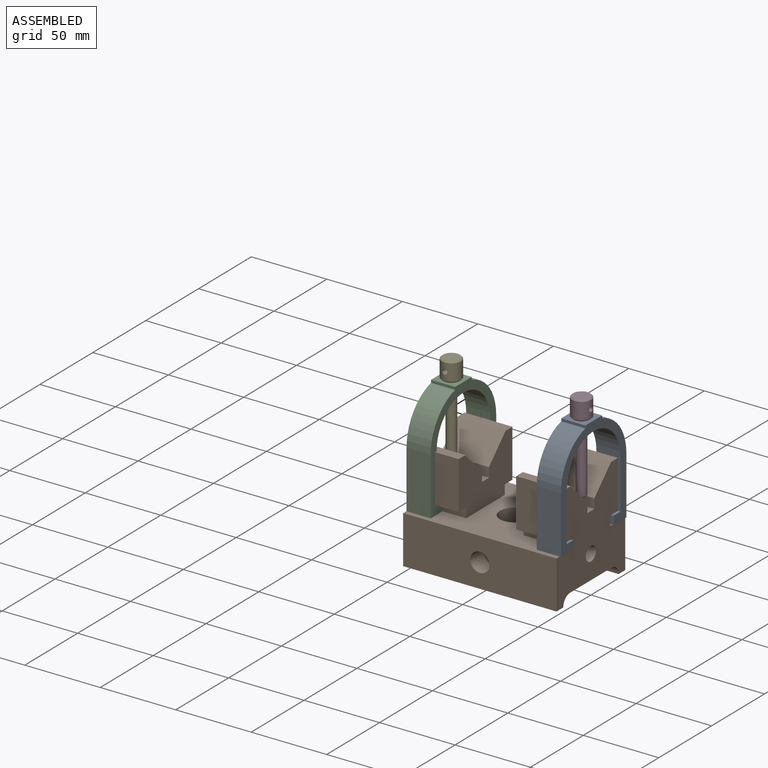
[diagram: assembled view]
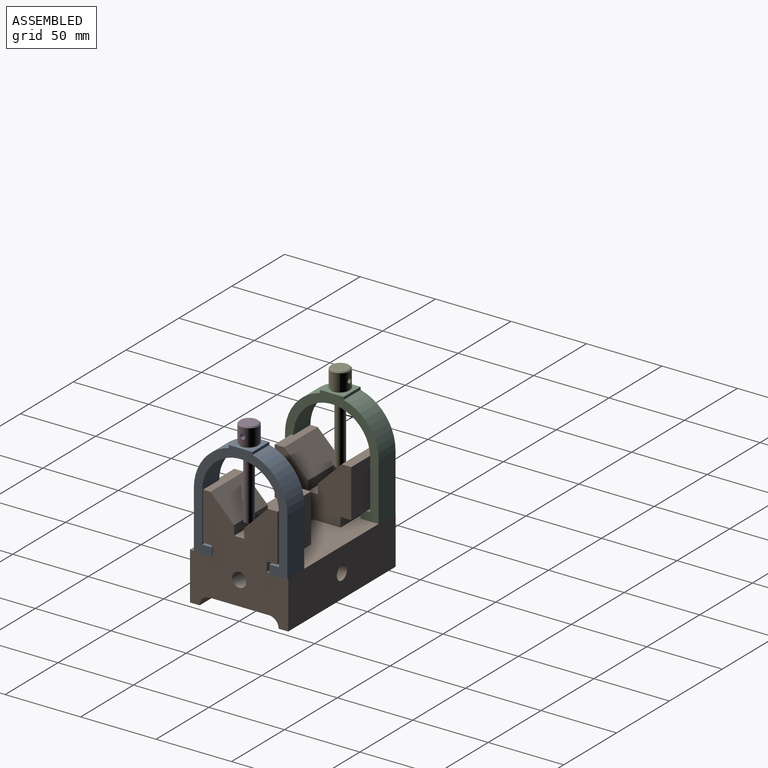
[diagram: assembled view, second angle]
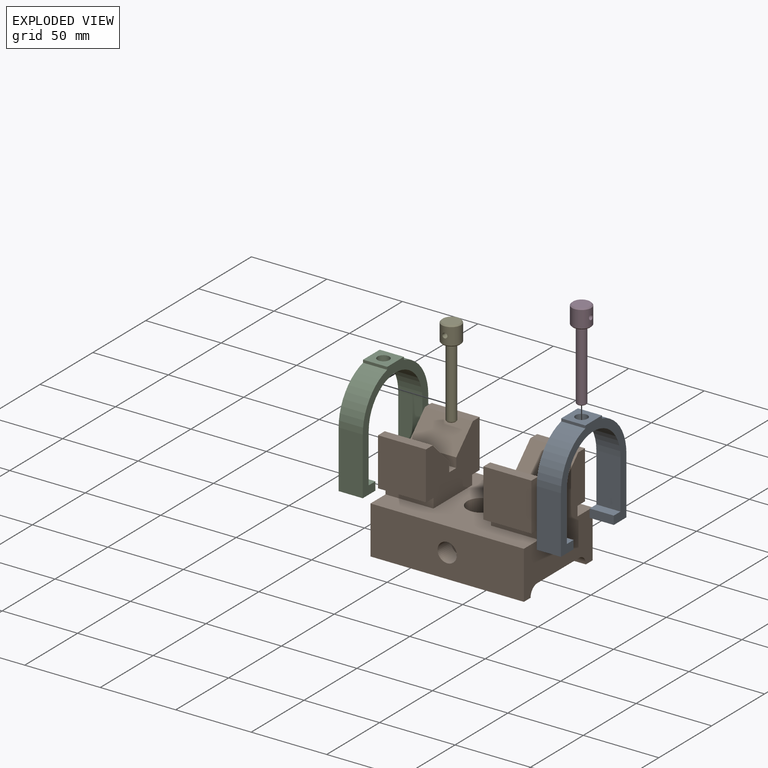
[diagram: exploded view]
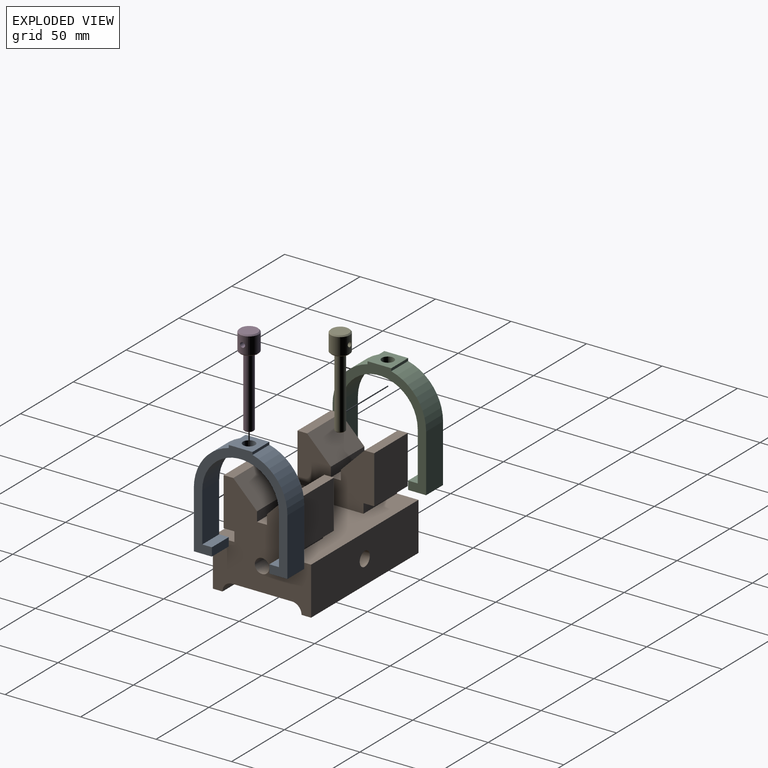
[diagram: exploded view, second angle]
ASSEMBLY  parts=5 mates=4
PART A: 19 faces, bbox 16x69.9x62 mm
  f0: cylinder r=25.4mm len=50.8mm, axis (-1,0,0), area 1227.2mm2, adj f13,f14,f16,f17,f18
  f1: plane 16x5.59mm, normal (0,0,-1), area 89.4mm2, adj f2,f15,f16,f17
  f2: plane 16x11.94mm, normal (0,1,0), area 191mm2, adj f1,f3,f16,f17
  f3: plane 38.1x16mm, normal (0,0,1), area 609.7mm2, adj f2,f4,f16,f17
  f4: cylinder r=30.99mm len=29.97mm, axis (-1,0,0), area 651.5mm2, adj f3,f5,f16,f17
  f5: plane 16x1.78mm, normal (0,0,1), area 28.5mm2, adj f4,f6,f16,f17
  f6: plane 16x15.75mm, normal (0,-1,0), area 202.4mm2, adj f5,f7,f16,f17,f18
  f7: plane 16x1.78mm, normal (0,0,-1), area 28.5mm2, adj f6,f8,f16,f17
  f8: cylinder r=30.99mm len=29.97mm, axis (-1,0,0), area 651.5mm2, adj f7,f9,f16,f17
  f9: plane 38.1x16mm, normal (0,0,-1), area 609.7mm2, adj f8,f10,f16,f17
  f10: plane 16x11.94mm, normal (0,1,0), area 191mm2, adj f9,f11,f16,f17
  f11: plane 16x5.59mm, normal (0,0,1), area 89.4mm2, adj f10,f12,f16,f17
  f12: plane 16x6.35mm, normal (0,-1,0), area 101.6mm2, adj f11,f13,f16,f17
  f13: plane 32.51x16mm, normal (0,0,1), area 520.3mm2, adj f0,f12,f16,f17
  f14: plane 32.51x16mm, normal (0,0,-1), area 520.3mm2, adj f0,f15,f16,f17
  f15: plane 16x6.35mm, normal (0,-1,0), area 101.6mm2, adj f1,f14,f16,f17
  f16: plane 69.85x61.98mm, normal (1,0,0), area 1009mm2, adj f0,f1,f2,f3,f4,f5,f6,f7
  f17: plane 69.85x61.98mm, normal (-1,0,0), area 1009mm2, adj f0,f1,f2,f3,f4,f5,f6,f7
  f18: cylinder r=3.98mm len=7.95mm, axis (0,-1,0), area 162.5mm2, adj f0,f6
PART B: 45 faces, bbox 101.6x65x69.9 mm
  f0: cylinder r=4.76mm len=24.26mm, axis (0,-1,0), area 706.6mm2, adj f25,f44
  f1: plane 31.75x6.35mm, normal (0,0,1), area 201.6mm2, adj f2,f4,f36,f42
  f2: plane 31.75x31.75mm, normal (0,-1,0), area 1008.1mm2, adj f1,f5,f36,f42
  f3: plane 31.75x6.35mm, normal (0,0,1), area 201.6mm2, adj f9,f10,f36,f42
  f4: plane 31.75x15.75mm, normal (0,0.71,0.71), area 707.1mm2, adj f1,f13,f36,f42
  f5: plane 31.75x7.11mm, normal (0,0,-1), area 225.8mm2, adj f2,f6,f36,f42
  f6: plane 31.75x6.35mm, normal (0,-1,0), area 201.6mm2, adj f5,f26,f36,f42
  f7: plane 31.75x6.35mm, normal (0,1,0), area 201.6mm2, adj f8,f26,f36,f42
  f8: plane 31.75x7.11mm, normal (0,0,-1), area 225.8mm2, adj f7,f9,f36,f42
  f9: plane 31.75x31.75mm, normal (0,1,0), area 1008.1mm2, adj f3,f8,f36,f42
  f10: plane 31.75x15.75mm, normal (0,-0.71,0.71), area 707.1mm2, adj f3,f11,f36,f42
  f11: plane 31.75x6.35mm, normal (0,-1,0), area 201.6mm2, adj f10,f12,f36,f42
  f12: plane 31.75x6.6mm, normal (0,0,1), area 209.7mm2, adj f11,f13,f36,f42
  f13: plane 31.75x6.35mm, normal (0,1,0), area 201.6mm2, adj f4,f12,f36,f42
  f14: plane 31.75x15.75mm, normal (0,0.71,0.71), area 707.1mm2, adj f15,f34,f35,f43
  f15: plane 31.75x6.35mm, normal (0,0,1), area 201.6mm2, adj f14,f16,f35,f43
  f16: plane 31.75x31.75mm, normal (0,-1,0), area 1008.1mm2, adj f15,f17,f35,f43
  f17: plane 31.75x7.11mm, normal (0,0,-1), area 225.8mm2, adj f16,f18,f35,f43
  f18: plane 31.75x6.35mm, normal (0,-1,0), area 201.6mm2, adj f17,f26,f35,f43
  f19: plane 101.6x31.75mm, normal (0,-1,0), area 3099.1mm2, adj f20,f26,f35,f36,f41
  f20: plane 101.6x6.35mm, normal (0,0,-1), area 645.2mm2, adj f19,f21,f35,f36
  f21: cylinder r=6.35mm len=101.6mm, axis (1,0,0), area 1013.4mm2, adj f20,f22,f35,f36
  f22: plane 101.6x39.62mm, normal (0,0,-1), area 3740.8mm2, adj f21,f23,f35,f36,f44
  f23: cylinder r=6.35mm len=101.6mm, axis (1,0,0), area 1013.4mm2, adj f22,f24,f35,f36
  f24: plane 101.6x6.35mm, normal (0,0,-1), area 645.2mm2, adj f23,f25,f35,f36
  f25: plane 101.6x31.75mm, normal (0,1,0), area 3154.5mm2, adj f0,f24,f26,f35,f36
  f26: plane 101.6x65.02mm, normal (0,0,1), area 3998.8mm2, adj f6,f7,f18,f19,f25,f27,f35,f36
  f27: plane 31.75x6.35mm, normal (0,1,0), area 201.6mm2, adj f26,f28,f35,f43
  f28: plane 31.75x7.11mm, normal (0,0,-1), area 225.8mm2, adj f27,f29,f35,f43
  f29: plane 31.75x31.75mm, normal (0,1,0), area 1008.1mm2, adj f28,f30,f35,f43
  f30: plane 31.75x6.35mm, normal (0,0,1), area 201.6mm2, adj f29,f31,f35,f43
  f31: plane 31.75x15.75mm, normal (0,-0.71,0.71), area 707.1mm2, adj f30,f32,f35,f43
  f32: plane 31.75x6.35mm, normal (0,-1,0), area 201.6mm2, adj f31,f33,f35,f43
  f33: plane 31.75x6.6mm, normal (0,0,1), area 209.7mm2, adj f32,f34,f35,f43
  f34: plane 31.75x6.35mm, normal (0,1,0), area 201.6mm2, adj f14,f33,f35,f43
  f35: plane 69.85x65.02mm, normal (-1,0,0), area 3200.8mm2, adj f14,f15,f16,f17,f18,f19,f20,f21
  f36: plane 69.85x65.02mm, normal (1,0,0), area 3129.5mm2, adj f1,f2,f3,f4,f5,f6,f7,f8
  f37: cone r=0mm half-angle=59deg, axis (1,0,0), area 83.1mm2, adj f38
  f38: cylinder r=4.76mm len=15.88mm, axis (1,0,0), area 475mm2, adj f36,f37
  f39: cylinder r=4.76mm len=11.56mm, axis (0,-1,0), area 326.6mm2, adj f40,f44
  f40: plane 12.7x12.7mm, normal (0,-1,0), area 55.4mm2, adj f39,f41
  f41: cylinder r=6.35mm len=12.7mm, axis (0,-1,0), area 506.7mm2, adj f19,f40
  f42: plane 50.8x38.1mm, normal (-1,0,0), area 1451.2mm2, adj f1,f2,f3,f4,f5,f6,f7,f8
  f43: plane 50.8x38.1mm, normal (1,0,0), area 1451.2mm2, adj f14,f15,f16,f17,f18,f26,f27,f28
  f44: cylinder r=9.53mm len=25.4mm, axis (0,0,1), area 1372.6mm2, adj f0,f22,f26,f39
PART C: same geometry as A
PART D: 9 faces, bbox 12.7x59.7x12.7 mm
  f0: plane 11.18x11.18mm, normal (0,-1,0), area 98.1mm2, adj f6
  f1: plane 5.33x5.33mm, normal (0,1,0), area 22.3mm2, adj f8
  f2: cylinder r=3.17mm len=46.48mm, axis (0,1,0), area 927.3mm2, adj f3,f8
  f3: plane 11.18x11.18mm, normal (0,1,0), area 66.4mm2, adj f2,f5
  f4: cylinder r=6.35mm len=12.7mm, axis (0,1,0), area 428.6mm2, adj f5,f6,f7
  f5: cone r=5.59mm half-angle=45deg, axis (0,-1,0), area 40.4mm2, adj f3,f4
  f6: cone r=6.35mm half-angle=45deg, axis (0,1,0), area 40.4mm2, adj f0,f4
  f7: cylinder r=1.65mm len=12.7mm, axis (0,0,-1), area 129.5mm2, adj f4
  f8: cone r=2.67mm half-angle=45deg, axis (0,-1,0), area 13.2mm2, adj f1,f2
PART E: same geometry as D
PLACE A rot(axis=(-1,0,0),90deg) t=(-7.24,1.52,0)mm
PLACE B at identity fixed
PLACE C rot(axis=(0,0.71,-0.71),180deg) t=(-93.5,1.52,0)mm
PLACE D rot(axis=(-0.58,-0.58,0.58),120deg) t=(-7.24,1.52,22.86)mm
PLACE E rot(axis=(0,0.71,-0.71),180deg) t=(-93.5,1.52,22.86)mm
MATE fastened A.f18 <-> D.f2  axis (0,0,1) through (-7.24,1.52,69.85)mm
MATE slider A.f16 <-> B.f36  axis (-1,0,0) through (0.76,32.51,0)mm
MATE fastened E.f2 <-> C.f18  axis (0,0,-1) through (-93.5,1.52,69.85)mm
MATE slider B.f35 <-> C.f16  axis (1,0,0) through (-101.6,32.51,0)mm
